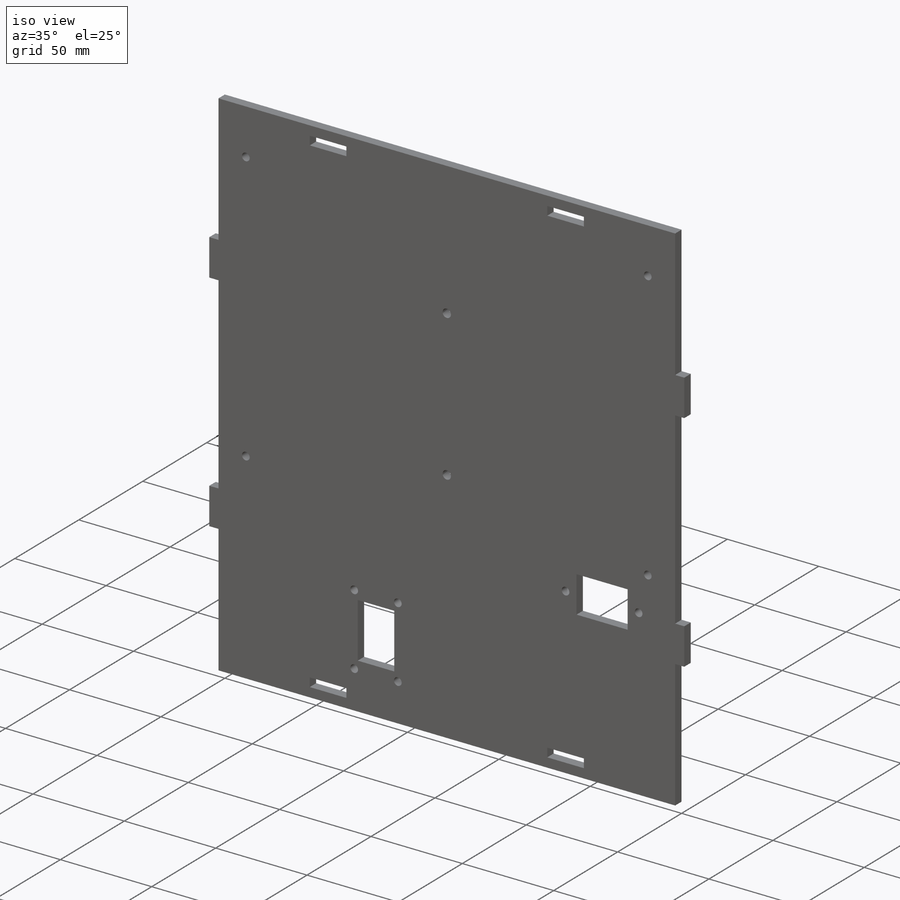
[diagram: iso view]
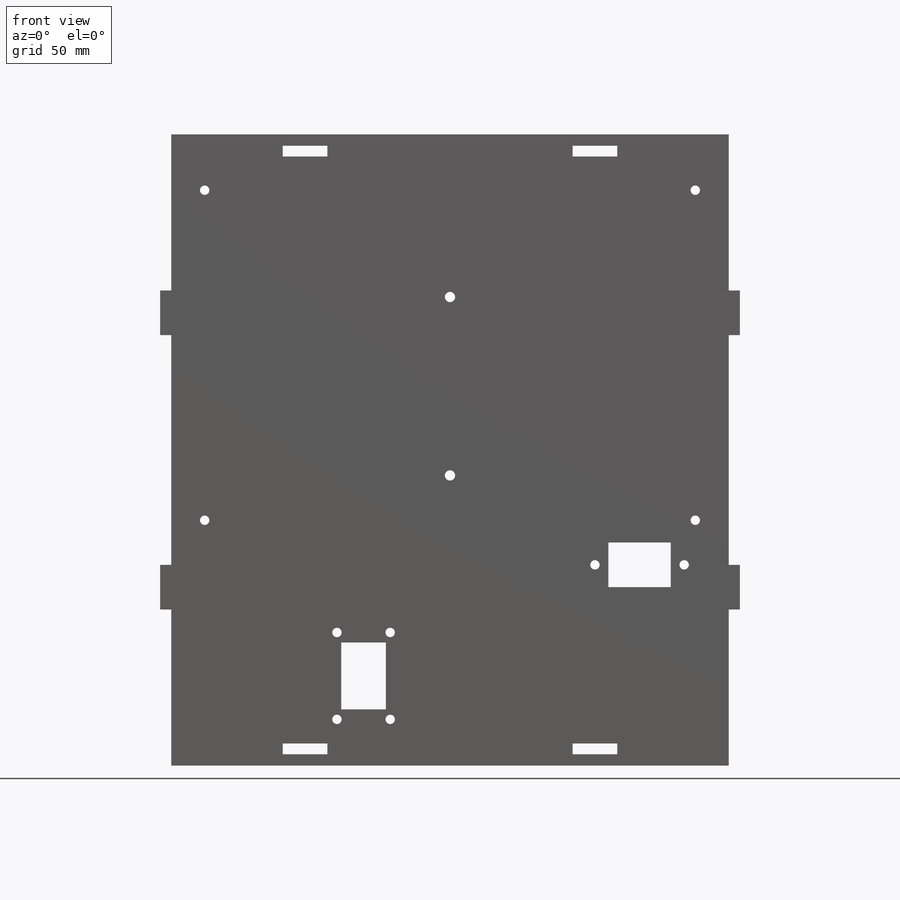
[diagram: front view]
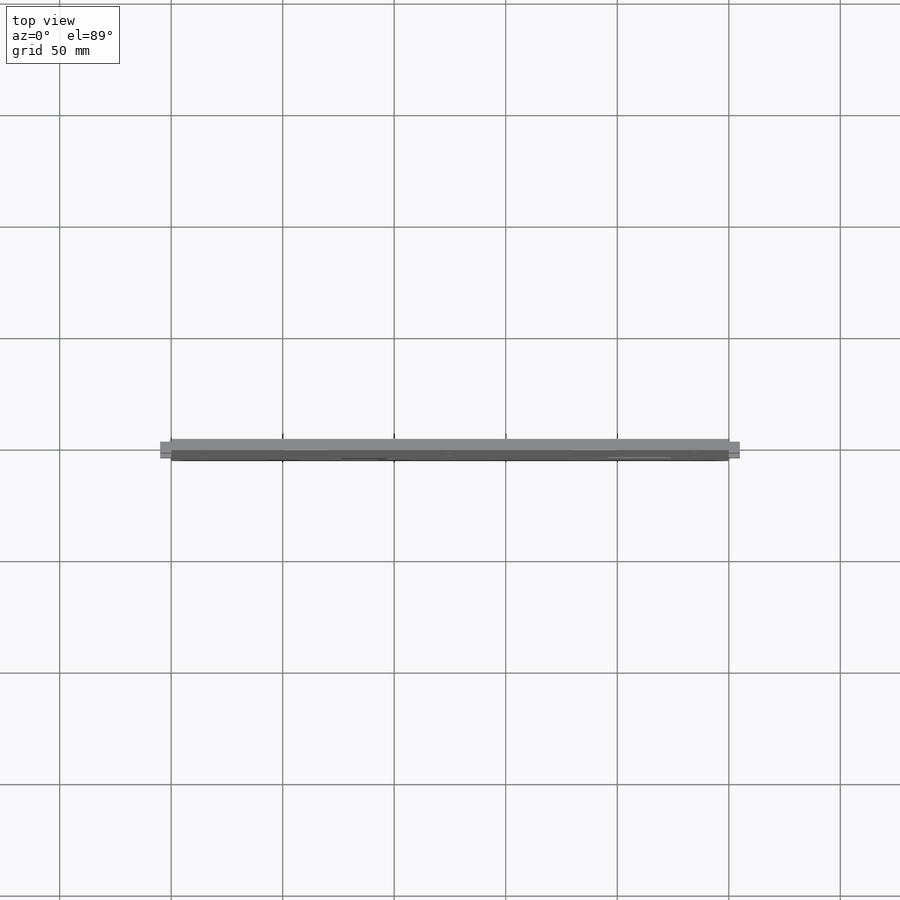
[diagram: top view]
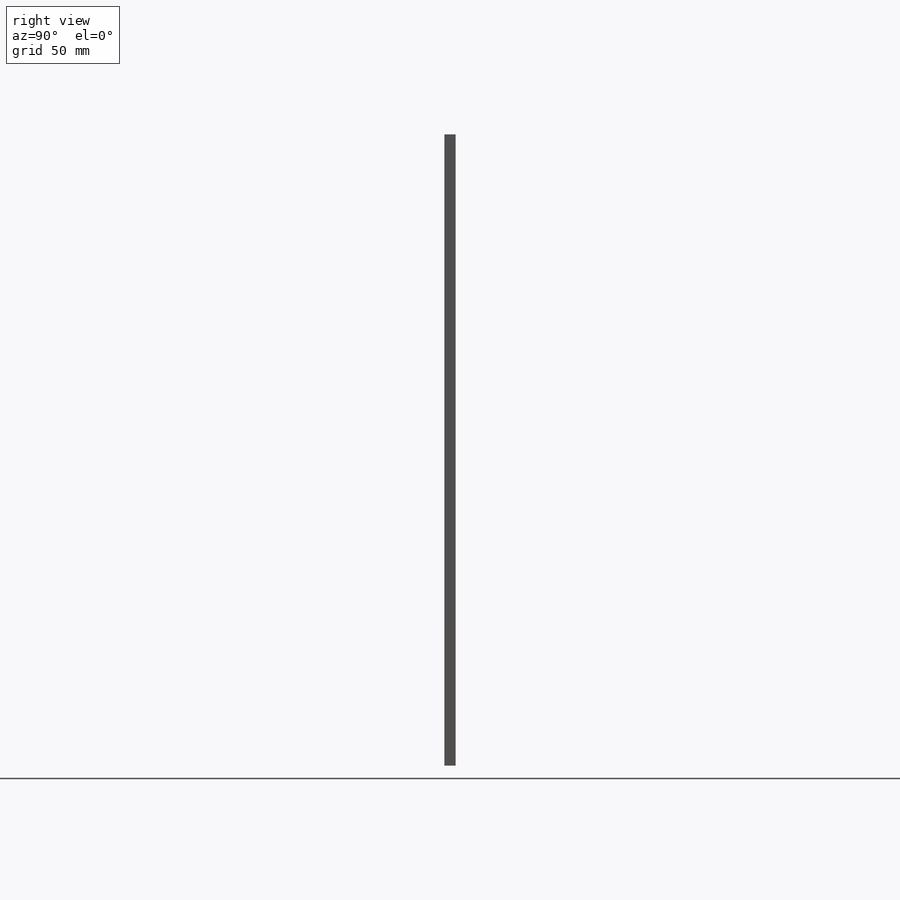
[diagram: right view]
SOLIDWORKS PART (.sldprt)
format: sldprt  version: not decoded by parser v0  size: 339,456 bytes
history: native  units: mm
features: sketch x7, cut_extrude x5, extrude x2, material x1 (+11 scaffold rows collapsed)
feature tree (26):
  scaffold x11  (default folders/planes/origin — collapsed)
  material  "Material <not specified>"
  sketch  "Sketch1"  dims[c1.D1=~286.286538mm c1.D2=~275.853355mm c2.D1=5.0mm c2.D2=10.0mm c2.D3=~4.464179mm c2.D4=20.0mm c3.D3=4.8mm c3.D4=0.1mm c3.D5=4.8mm c3.D6=20.0mm c4.D5=4.8mm c4.D6=0.1mm c4.D7=~3.484876mm c4.D8=~22.59161mm c5.D7=4.8mm c5.D8=0.1mm c5.D9=~2.488555mm c5.D10=~22.811756mm c6.D9=4.8mm c6.D10=0.1mm]
  extrude  "Boss-Extrude1"  Depth=5mm
  sketch  "Sketch2"  dims[c1.D1=~41.851209mm c1.D2=~8.248992mm c2.D1=~58.853263mm c2.D2=~8.248992mm c3.D1=~45.77476mm c3.D2=~14.655767mm c4.D1=~45.77476mm c4.D2=~22.066918mm c5.D1=5.0mm c5.D2=20.0mm c5.D3=70.0mm c5.D4=70.0mm]
  extrude  "Boss-Extrude2"  [1 undecoded]
  sketch  "Sketch3"  dims[c1.D3=4.2mm c1.D4=4.2mm c1.D5=4.2mm c1.D6=4.2mm c1.D7=4.2mm c1.D1=~0.892877mm c1.D2=~0.892877mm c2.D1=28.0mm c2.D2=20.0mm c2.D5=40.0mm c2.D6=20.0mm c2.D7=10.0mm c2.D8=40.0mm c2.D9=80.0mm]
  cut_extrude  "Cut-Extrude1"  Depth=5mm
  sketch  "Sketch4"  dims[c1.D1=~9.549489mm c1.D2=~4.41842mm c2.D1=~10.404667mm c2.D2=~6.128777mm c3.D1=20.0mm c3.D2=30.0mm c3.D3=76.25mm c3.D4=25.2mm]
  cut_extrude  "Cut-Extrude2"  Depth=5mm
  sketch  "Sketch5"
  cut_extrude  "Cut-Extrude3"  [1 undecoded]
  sketch  "Sketch6"  dims[c1.D1=~6.229746mm c1.D3=4.2mm c1.D4=4.2mm c1.D5=4.2mm c1.D6=4.2mm c2.D1=15.0mm c2.D2=15.0mm c2.D5=15.0mm c2.D6=15.0mm]
  cut_extrude  "Cut-Extrude4"  Depth=5mm
  sketch  "Sketch7"  dims[c1.D1=4.2mm c1.D4=4.2mm c1.D5=4.2mm c1.D6=4.2mm c1.D2=15.0mm c1.D3=110.0mm c2.D5=15.0mm c2.D6=110.0mm]
  cut_extrude  "Cut-Extrude5"  Depth=5mm
decode coverage: 11 of 14 modeling features carry decoded parameters
note: ~ marks probable driven/reference dimensions
note: 2 parameter values undecoded
note: suppression state not decoded; provenance and decode notes live in map.json
